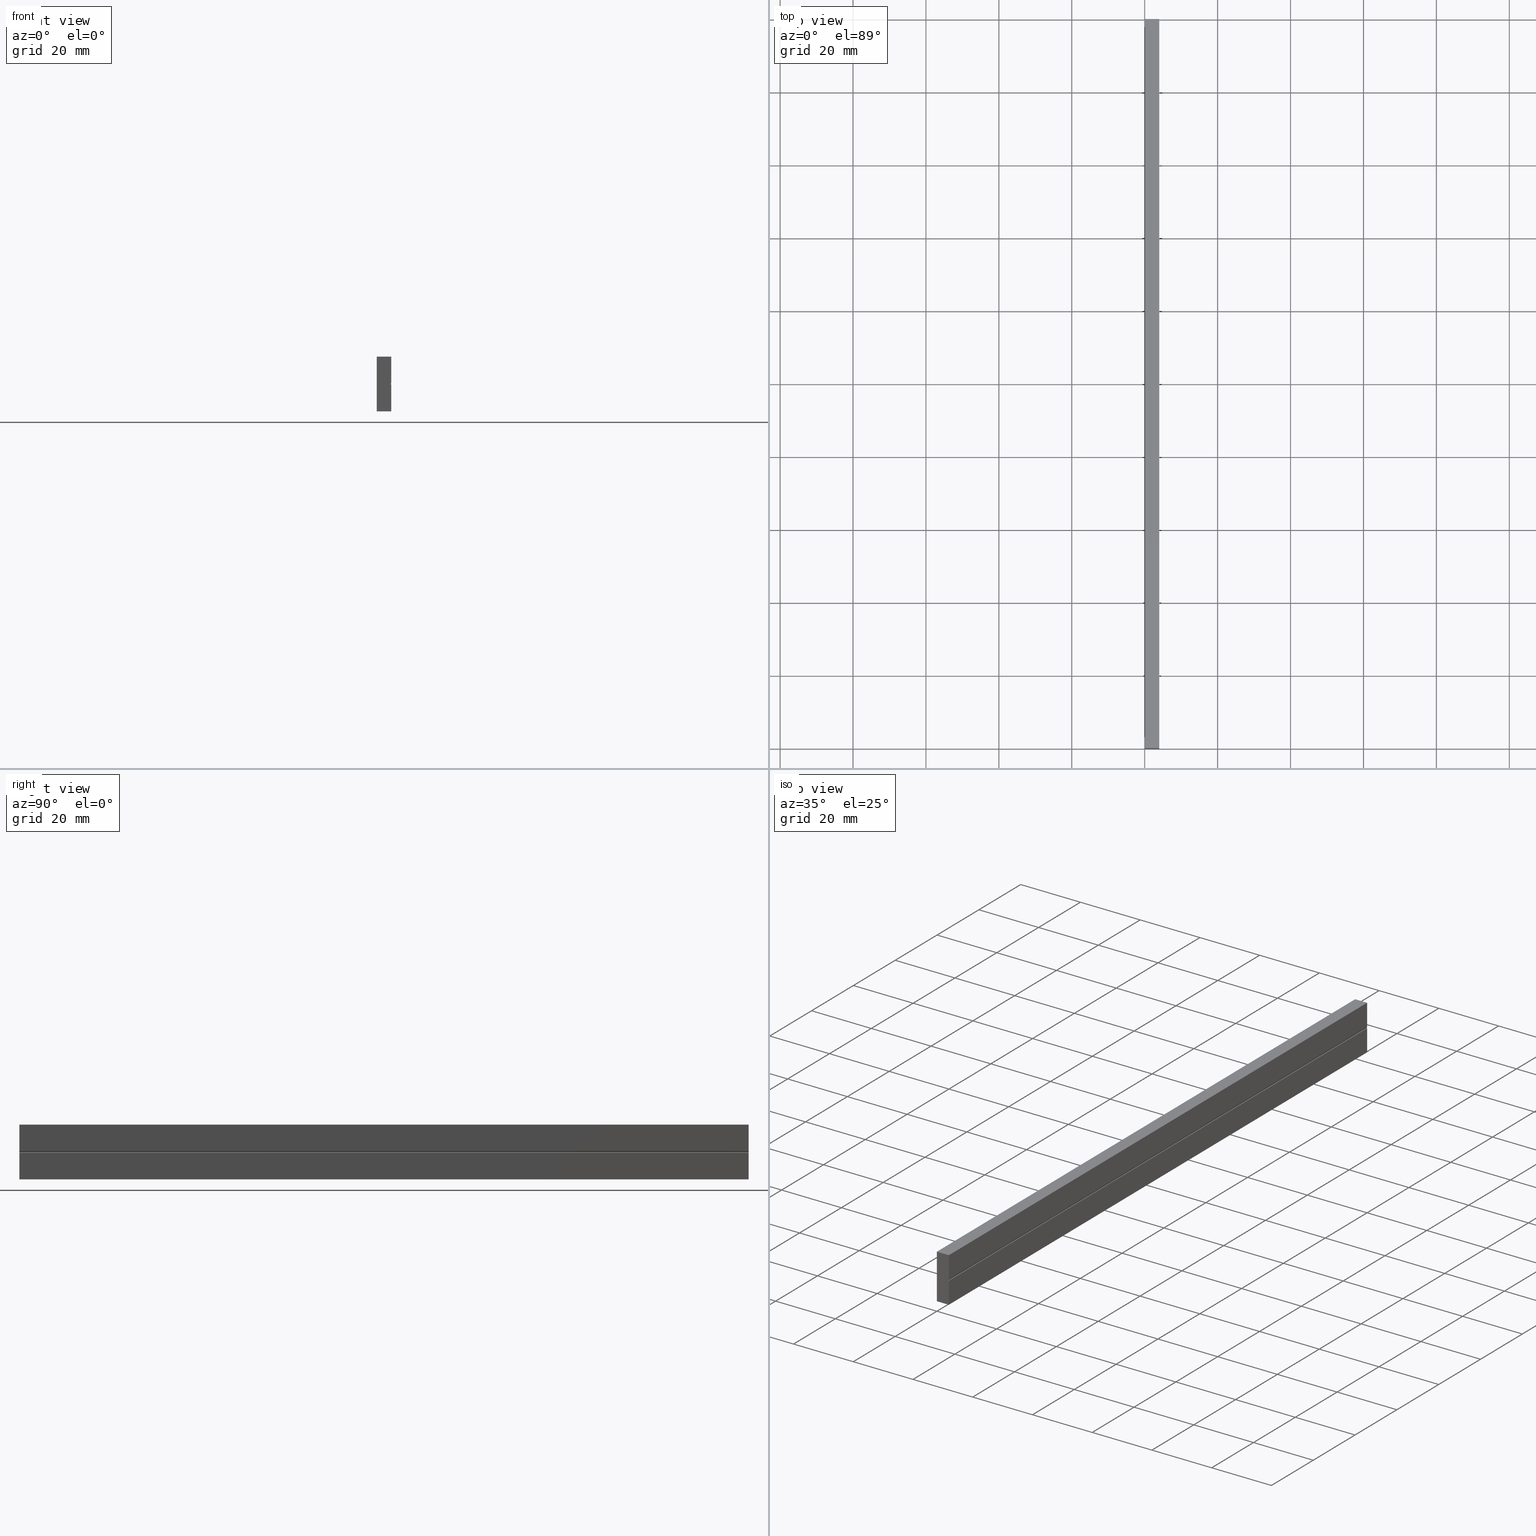
[diagram: canonical four-view strip — front | top / right | iso, engineering-drawing reading convention]
A machine part, canonical four-view strip (front | top / right | iso — engineering-drawing reading convention). The complete STEP part file that produces these views, byte-faithful:
ISO-10303-21;
HEADER;
/****************************************************************
 * Generated by software with PDE/Lib inside                    *
 * PDElib Version 4.4.1-0003, patched  Thursday August 19 11:58 *
 * International Technegroup Inc. (www.iti-oh.com)              *
 ****************************************************************/
FILE_DESCRIPTION((''),'2;1');
FILE_NAME('','2005-12-14T15:06:52',(''),(''),'','CADfix','');
FILE_SCHEMA(('AUTOMOTIVE_DESIGN'));
ENDSEC;
DATA;
#5=APPLICATION_CONTEXT('automotive design');
#6=APPLICATION_PROTOCOL_DEFINITION('Draft International Standard','automotive_design',1998,#5);
#7=PRODUCT_CONTEXT('None',#5,'mechanical');
#8=PRODUCT('magnet','','None',(#7));
#9=PRODUCT_RELATED_PRODUCT_CATEGORY('part','description',(#8));
#10=PRODUCT_DEFINITION_FORMATION('None','None',#8);
#11=PRODUCT_DEFINITION_CONTEXT('part definition',#5,'design');
#12=PRODUCT_DEFINITION('None','None',#10,#11);
#18=(NAMED_UNIT(*)PLANE_ANGLE_UNIT()SI_UNIT($,.RADIAN.));
#19=DIMENSIONAL_EXPONENTS(0.0,0.0,0.0,0.0,0.0,0.0,0.0);
#20=PLANE_ANGLE_MEASURE_WITH_UNIT(PLANE_ANGLE_MEASURE(0.017453292500000),#18);
#24=(CONVERSION_BASED_UNIT('DEGREE',#20)NAMED_UNIT(#19)PLANE_ANGLE_UNIT());
#28=(NAMED_UNIT(*)SI_UNIT($,.STERADIAN.)SOLID_ANGLE_UNIT());
#32=(LENGTH_UNIT()NAMED_UNIT(*)SI_UNIT(.MILLI.,.METRE.));
#34=UNCERTAINTY_MEASURE_WITH_UNIT(LENGTH_MEASURE(0.001000000000000),#32,'DISTANCE_ACCURACY_VALUE','');
#36=(GEOMETRIC_REPRESENTATION_CONTEXT(3)GLOBAL_UNCERTAINTY_ASSIGNED_CONTEXT((#34))GLOBAL_UNIT_ASSIGNED_CONTEXT((#24,#28,#32))REPRESENTATION_CONTEXT('None','None'));
#37=AXIS2_PLACEMENT_3D('',#38,#39,#40);
#38=CARTESIAN_POINT('',(0.0,0.0,0.0));
#39=DIRECTION('',(0.0,0.0,1.0));
#40=DIRECTION('',(1.0,0.0,0.0));
#41=ADVANCED_BREP_SHAPE_REPRESENTATION('',(#37,#266),#36);
#42=PRODUCT_DEFINITION_SHAPE('','',#12);
#43=SHAPE_DEFINITION_REPRESENTATION(#42,#41);
#44=CARTESIAN_POINT('',(-0.199799992247224,-1.776357E-015,15.749249970927091));
#45=CARTESIAN_POINT('',(4.199800099535585,-1.776357E-015,15.749249970927091));
#46=CARTESIAN_POINT('',(-0.199799992247224,-1.776357E-015,-0.749250373258442));
#47=CARTESIAN_POINT('',(4.199800099535585,-1.776357E-015,-0.749250373258442));
#48=B_SPLINE_SURFACE_WITH_KNOTS('',1,1,((#44,#46),(#45,#47)),.UNSPECIFIED.,.F.,.F.,.U.,(2,2),(2,2),(0.0,4.399600091782808),(0.0,16.498500344185530),.UNSPECIFIED.);
#49=CARTESIAN_POINT('',(0.0,0.0,15.0));
#50=VERTEX_POINT('',#49);
#51=CARTESIAN_POINT('',(0.0,0.0,0.0));
#52=VERTEX_POINT('',#51);
#53=CARTESIAN_POINT('',(0.0,0.0,15.0));
#54=CARTESIAN_POINT('',(0.0,0.0,0.0));
#55=QUASI_UNIFORM_CURVE('',1,(#53,#54),.UNSPECIFIED.,.F.,.U.);
#56=EDGE_CURVE('',#50,#52,#55,.T.);
#57=ORIENTED_EDGE('',*,*,#56,.T.);
#58=CARTESIAN_POINT('',(4.0,0.0,0.0));
#59=VERTEX_POINT('',#58);
#60=CARTESIAN_POINT('',(0.0,0.0,0.0));
#61=CARTESIAN_POINT('',(4.0,0.0,0.0));
#62=QUASI_UNIFORM_CURVE('',1,(#60,#61),.UNSPECIFIED.,.F.,.U.);
#63=EDGE_CURVE('',#52,#59,#62,.T.);
#64=ORIENTED_EDGE('',*,*,#63,.T.);
#65=CARTESIAN_POINT('',(4.0,0.0,7.249999999918490));
#66=VERTEX_POINT('',#65);
#67=CARTESIAN_POINT('',(4.0,0.0,0.0));
#68=CARTESIAN_POINT('',(4.0,0.0,7.249999999918490));
#69=QUASI_UNIFORM_CURVE('',1,(#67,#68),.UNSPECIFIED.,.F.,.U.);
#70=EDGE_CURVE('',#59,#66,#69,.T.);
#71=ORIENTED_EDGE('',*,*,#70,.T.);
#72=CARTESIAN_POINT('',(4.0,0.0,7.749999999918620));
#73=VERTEX_POINT('',#72);
#74=CARTESIAN_POINT('',(3.999999999999992,0.0,7.749999999918628));
#75=CARTESIAN_POINT('',(3.761904761904685,0.0,7.499999999918553));
#76=CARTESIAN_POINT('',(4.0,0.0,7.249999999918490));
#84=(BOUNDED_CURVE()B_SPLINE_CURVE(2,(#74,#75,#76),.UNSPECIFIED.,.F.,.U.)CURVE()GEOMETRIC_REPRESENTATION_ITEM()QUASI_UNIFORM_CURVE()RATIONAL_B_SPLINE_CURVE((1.0,0.724137931034393,1.0))REPRESENTATION_ITEM(''));
#85=EDGE_CURVE('',#73,#66,#84,.T.);
#86=ORIENTED_EDGE('',*,*,#85,.F.);
#87=CARTESIAN_POINT('',(4.0,0.0,15.0));
#88=VERTEX_POINT('',#87);
#89=CARTESIAN_POINT('',(4.0,0.0,7.749999999918620));
#90=CARTESIAN_POINT('',(4.0,0.0,15.0));
#91=QUASI_UNIFORM_CURVE('',1,(#89,#90),.UNSPECIFIED.,.F.,.U.);
#92=EDGE_CURVE('',#73,#88,#91,.T.);
#93=ORIENTED_EDGE('',*,*,#92,.T.);
#94=CARTESIAN_POINT('',(4.0,0.0,15.0));
#95=CARTESIAN_POINT('',(0.0,0.0,15.0));
#96=QUASI_UNIFORM_CURVE('',1,(#94,#95),.UNSPECIFIED.,.F.,.U.);
#97=EDGE_CURVE('',#88,#50,#96,.T.);
#98=ORIENTED_EDGE('',*,*,#97,.T.);
#99=EDGE_LOOP('',(#57,#64,#71,#86,#93,#98));
#100=FACE_OUTER_BOUND('',#99,.T.);
#101=ADVANCED_FACE('',(#100),#48,.F.);
#102=CARTESIAN_POINT('',(-0.199799992247224,200.0,15.749249970927091));
#103=CARTESIAN_POINT('',(4.199800099535585,200.0,15.749249970927091));
#104=CARTESIAN_POINT('',(-0.199799992247224,200.0,-0.749250373258442));
#105=CARTESIAN_POINT('',(4.199800099535585,200.0,-0.749250373258442));
#106=B_SPLINE_SURFACE_WITH_KNOTS('',1,1,((#102,#104),(#103,#105)),.UNSPECIFIED.,.F.,.F.,.U.,(2,2),(2,2),(0.0,4.399600091782808),(0.0,16.498500344185530),.UNSPECIFIED.);
#107=CARTESIAN_POINT('',(0.0,200.0,15.0));
#108=VERTEX_POINT('',#107);
#109=CARTESIAN_POINT('',(0.0,200.0,0.0));
#110=VERTEX_POINT('',#109);
#111=CARTESIAN_POINT('',(0.0,200.0,15.0));
#112=CARTESIAN_POINT('',(0.0,200.0,0.0));
#113=QUASI_UNIFORM_CURVE('',1,(#111,#112),.UNSPECIFIED.,.F.,.U.);
#114=EDGE_CURVE('',#108,#110,#113,.T.);
#115=ORIENTED_EDGE('',*,*,#114,.F.);
#116=CARTESIAN_POINT('',(4.0,200.0,15.0));
#117=VERTEX_POINT('',#116);
#118=CARTESIAN_POINT('',(4.0,200.0,15.0));
#119=CARTESIAN_POINT('',(0.0,200.0,15.0));
#120=QUASI_UNIFORM_CURVE('',1,(#118,#119),.UNSPECIFIED.,.F.,.U.);
#121=EDGE_CURVE('',#117,#108,#120,.T.);
#122=ORIENTED_EDGE('',*,*,#121,.F.);
#123=CARTESIAN_POINT('',(4.0,200.0,7.749999999918620));
#124=VERTEX_POINT('',#123);
#125=CARTESIAN_POINT('',(4.0,200.0,7.749999999918620));
#126=CARTESIAN_POINT('',(4.0,200.0,15.0));
#127=QUASI_UNIFORM_CURVE('',1,(#125,#126),.UNSPECIFIED.,.F.,.U.);
#128=EDGE_CURVE('',#124,#117,#127,.T.);
#129=ORIENTED_EDGE('',*,*,#128,.F.);
#130=CARTESIAN_POINT('',(4.0,200.0,7.249999999918490));
#131=VERTEX_POINT('',#130);
#132=CARTESIAN_POINT('',(3.999999999999992,200.0,7.749999999918628));
#133=CARTESIAN_POINT('',(3.761904761904685,200.0,7.499999999918553));
#134=CARTESIAN_POINT('',(4.000000000000057,200.0,7.249999999918543));
#142=(BOUNDED_CURVE()B_SPLINE_CURVE(2,(#132,#133,#134),.UNSPECIFIED.,.F.,.U.)CURVE()GEOMETRIC_REPRESENTATION_ITEM()QUASI_UNIFORM_CURVE()RATIONAL_B_SPLINE_CURVE((1.0,0.724137931034393,1.0))REPRESENTATION_ITEM(''));
#143=EDGE_CURVE('',#124,#131,#142,.T.);
#144=ORIENTED_EDGE('',*,*,#143,.T.);
#145=CARTESIAN_POINT('',(4.0,200.0,0.0));
#146=VERTEX_POINT('',#145);
#147=CARTESIAN_POINT('',(4.0,200.0,0.0));
#148=CARTESIAN_POINT('',(4.0,200.0,7.249999999918490));
#149=QUASI_UNIFORM_CURVE('',1,(#147,#148),.UNSPECIFIED.,.F.,.U.);
#150=EDGE_CURVE('',#146,#131,#149,.T.);
#151=ORIENTED_EDGE('',*,*,#150,.F.);
#152=CARTESIAN_POINT('',(0.0,200.0,0.0));
#153=CARTESIAN_POINT('',(4.0,200.0,0.0));
#154=QUASI_UNIFORM_CURVE('',1,(#152,#153),.UNSPECIFIED.,.F.,.U.);
#155=EDGE_CURVE('',#110,#146,#154,.T.);
#156=ORIENTED_EDGE('',*,*,#155,.F.);
#157=EDGE_LOOP('',(#115,#122,#129,#144,#151,#156));
#158=FACE_OUTER_BOUND('',#157,.T.);
#159=ADVANCED_FACE('',(#158),#106,.T.);
#160=CARTESIAN_POINT('',(-0.199799992247224,-9.989999612361171,15.0));
#161=CARTESIAN_POINT('',(4.199800099535585,-9.989999612361171,15.0));
#162=CARTESIAN_POINT('',(-0.199799992247224,209.990004976779200,15.0));
#163=CARTESIAN_POINT('',(4.199800099535585,209.990004976779200,15.0));
#164=B_SPLINE_SURFACE_WITH_KNOTS('',1,1,((#160,#162),(#161,#163)),.UNSPECIFIED.,.F.,.F.,.U.,(2,2),(2,2),(0.0,4.399600091782808),(0.0,219.980004589140410),.UNSPECIFIED.);
#165=ORIENTED_EDGE('',*,*,#97,.F.);
#166=CARTESIAN_POINT('',(4.0,200.0,15.0));
#167=CARTESIAN_POINT('',(4.0,0.0,15.0));
#168=QUASI_UNIFORM_CURVE('',1,(#166,#167),.UNSPECIFIED.,.F.,.U.);
#169=EDGE_CURVE('',#117,#88,#168,.T.);
#170=ORIENTED_EDGE('',*,*,#169,.F.);
#171=ORIENTED_EDGE('',*,*,#121,.T.);
#172=CARTESIAN_POINT('',(0.0,200.0,15.0));
#173=CARTESIAN_POINT('',(0.0,0.0,15.0));
#174=QUASI_UNIFORM_CURVE('',1,(#172,#173),.UNSPECIFIED.,.F.,.U.);
#175=EDGE_CURVE('',#108,#50,#174,.T.);
#176=ORIENTED_EDGE('',*,*,#175,.T.);
#177=EDGE_LOOP('',(#165,#170,#171,#176));
#178=FACE_OUTER_BOUND('',#177,.T.);
#179=ADVANCED_FACE('',(#178),#164,.T.);
#180=CARTESIAN_POINT('',(4.0,-9.989999612361171,15.362137485952161));
#181=CARTESIAN_POINT('',(4.0,-9.989999612361171,7.387862319506308));
#182=CARTESIAN_POINT('',(4.0,209.990004976779200,15.362137485952161));
#183=CARTESIAN_POINT('',(4.0,209.990004976779200,7.387862319506308));
#184=B_SPLINE_SURFACE_WITH_KNOTS('',1,1,((#180,#182),(#181,#183)),.UNSPECIFIED.,.F.,.F.,.U.,(2,2),(2,2),(0.0,7.974275166445849),(0.0,219.980004589140410),.UNSPECIFIED.);
#185=ORIENTED_EDGE('',*,*,#92,.F.);
#186=CARTESIAN_POINT('',(4.0,200.0,7.749999999918620));
#187=CARTESIAN_POINT('',(4.0,0.0,7.749999999918620));
#188=QUASI_UNIFORM_CURVE('',1,(#186,#187),.UNSPECIFIED.,.F.,.U.);
#189=EDGE_CURVE('',#124,#73,#188,.T.);
#190=ORIENTED_EDGE('',*,*,#189,.F.);
#191=ORIENTED_EDGE('',*,*,#128,.T.);
#192=ORIENTED_EDGE('',*,*,#169,.T.);
#193=EDGE_LOOP('',(#185,#190,#191,#192));
#194=FACE_OUTER_BOUND('',#193,.T.);
#195=ADVANCED_FACE('',(#194),#184,.T.);
#196=CARTESIAN_POINT('',(4.002191629070306,205.0,7.247718803584179));
#197=CARTESIAN_POINT('',(4.002191629070306,-5.125000000000000,7.247718803584179));
#198=CARTESIAN_POINT('',(3.745468418572526,204.999999999999970,7.512610526294766));
#199=CARTESIAN_POINT('',(3.745468418572526,-5.125000000000000,7.512610526294766));
#200=CARTESIAN_POINT('',(4.014800234802203,205.0,7.764671638597502));
#201=CARTESIAN_POINT('',(4.014800234802203,-5.125000000000000,7.764671638597502));
#209=(BOUNDED_SURFACE()B_SPLINE_SURFACE(1,2,((#196,#198,#200),(#197,#199,#201)),.UNSPECIFIED.,.F.,.F.,.U.)B_SPLINE_SURFACE_WITH_KNOTS((2,2),(3,3),(0.0,210.125000000000000),(0.0,1.0),.UNSPECIFIED.)GEOMETRIC_REPRESENTATION_ITEM()RATIONAL_B_SPLINE_SURFACE(((1.0,0.700909264299851,1.0),(1.0,0.700909264299851,1.0)))REPRESENTATION_ITEM('')SURFACE());
#210=ORIENTED_EDGE('',*,*,#85,.T.);
#211=CARTESIAN_POINT('',(4.0,200.0,7.249999999918490));
#212=CARTESIAN_POINT('',(4.0,0.0,7.249999999918490));
#213=QUASI_UNIFORM_CURVE('',1,(#211,#212),.UNSPECIFIED.,.F.,.U.);
#214=EDGE_CURVE('',#131,#66,#213,.T.);
#215=ORIENTED_EDGE('',*,*,#214,.F.);
#216=ORIENTED_EDGE('',*,*,#143,.F.);
#217=ORIENTED_EDGE('',*,*,#189,.T.);
#218=EDGE_LOOP('',(#210,#215,#216,#217));
#219=FACE_OUTER_BOUND('',#218,.T.);
#220=ADVANCED_FACE('',(#219),#209,.F.);
#221=CARTESIAN_POINT('',(4.0,-9.989999612361194,7.612137485862512));
#222=CARTESIAN_POINT('',(4.0,-9.989999612361194,-0.362137680404175));
#223=CARTESIAN_POINT('',(4.0,209.990004976779200,7.612137485862512));
#224=CARTESIAN_POINT('',(4.0,209.990004976779200,-0.362137680404175));
#225=B_SPLINE_SURFACE_WITH_KNOTS('',1,1,((#221,#223),(#222,#224)),.UNSPECIFIED.,.F.,.F.,.U.,(2,2),(2,2),(0.0,7.974275166266687),(0.0,219.980004589140410),.UNSPECIFIED.);
#226=ORIENTED_EDGE('',*,*,#70,.F.);
#227=CARTESIAN_POINT('',(4.0,200.0,0.0));
#228=CARTESIAN_POINT('',(4.0,0.0,0.0));
#229=QUASI_UNIFORM_CURVE('',1,(#227,#228),.UNSPECIFIED.,.F.,.U.);
#230=EDGE_CURVE('',#146,#59,#229,.T.);
#231=ORIENTED_EDGE('',*,*,#230,.F.);
#232=ORIENTED_EDGE('',*,*,#150,.T.);
#233=ORIENTED_EDGE('',*,*,#214,.T.);
#234=EDGE_LOOP('',(#226,#231,#232,#233));
#235=FACE_OUTER_BOUND('',#234,.T.);
#236=ADVANCED_FACE('',(#235),#225,.T.);
#237=CARTESIAN_POINT('',(4.199799992247224,-9.989999612361194,0.0));
#238=CARTESIAN_POINT('',(-0.199800099535584,-9.989999612361194,0.0));
#239=CARTESIAN_POINT('',(4.199799992247224,209.990004976779200,0.0));
#240=CARTESIAN_POINT('',(-0.199800099535584,209.990004976779200,0.0));
#241=B_SPLINE_SURFACE_WITH_KNOTS('',1,1,((#237,#239),(#238,#240)),.UNSPECIFIED.,.F.,.F.,.U.,(2,2),(2,2),(0.0,4.399600091782808),(0.0,219.980004589140410),.UNSPECIFIED.);
#242=ORIENTED_EDGE('',*,*,#63,.F.);
#243=CARTESIAN_POINT('',(0.0,200.0,0.0));
#244=CARTESIAN_POINT('',(0.0,0.0,0.0));
#245=QUASI_UNIFORM_CURVE('',1,(#243,#244),.UNSPECIFIED.,.F.,.U.);
#246=EDGE_CURVE('',#110,#52,#245,.T.);
#247=ORIENTED_EDGE('',*,*,#246,.F.);
#248=ORIENTED_EDGE('',*,*,#155,.T.);
#249=ORIENTED_EDGE('',*,*,#230,.T.);
#250=EDGE_LOOP('',(#242,#247,#248,#249));
#251=FACE_OUTER_BOUND('',#250,.T.);
#252=ADVANCED_FACE('',(#251),#241,.T.);
#253=CARTESIAN_POINT('',(0.0,-9.989999612361171,-0.749249970927090));
#254=CARTESIAN_POINT('',(0.0,-9.989999612361171,15.749250373258439));
#255=CARTESIAN_POINT('',(0.0,209.990004976779200,-0.749249970927090));
#256=CARTESIAN_POINT('',(0.0,209.990004976779200,15.749250373258439));
#257=B_SPLINE_SURFACE_WITH_KNOTS('',1,1,((#253,#255),(#254,#256)),.UNSPECIFIED.,.F.,.F.,.U.,(2,2),(2,2),(0.0,16.498500344185530),(0.0,219.980004589140410),.UNSPECIFIED.);
#258=ORIENTED_EDGE('',*,*,#56,.F.);
#259=ORIENTED_EDGE('',*,*,#175,.F.);
#260=ORIENTED_EDGE('',*,*,#114,.T.);
#261=ORIENTED_EDGE('',*,*,#246,.T.);
#262=EDGE_LOOP('',(#258,#259,#260,#261));
#263=FACE_OUTER_BOUND('',#262,.T.);
#264=ADVANCED_FACE('',(#263),#257,.T.);
#265=CLOSED_SHELL('',(#101,#159,#179,#195,#220,#236,#252,#264));
#266=MANIFOLD_SOLID_BREP('magnet',#265);
#272=(NAMED_UNIT(*)PLANE_ANGLE_UNIT()SI_UNIT($,.RADIAN.));
#273=DIMENSIONAL_EXPONENTS(0.0,0.0,0.0,0.0,0.0,0.0,0.0);
#274=PLANE_ANGLE_MEASURE_WITH_UNIT(PLANE_ANGLE_MEASURE(0.017453292500000),#272);
#278=(CONVERSION_BASED_UNIT('DEGREE',#274)NAMED_UNIT(#273)PLANE_ANGLE_UNIT());
#282=(NAMED_UNIT(*)SI_UNIT($,.STERADIAN.)SOLID_ANGLE_UNIT());
#286=(LENGTH_UNIT()NAMED_UNIT(*)SI_UNIT(.MILLI.,.METRE.));
#288=UNCERTAINTY_MEASURE_WITH_UNIT(LENGTH_MEASURE(0.001000000000000),#286,'DISTANCE_ACCURACY_VALUE','');
#290=(GEOMETRIC_REPRESENTATION_CONTEXT(3)GLOBAL_UNCERTAINTY_ASSIGNED_CONTEXT((#288))GLOBAL_UNIT_ASSIGNED_CONTEXT((#278,#282,#286))REPRESENTATION_CONTEXT('','3D'));
ENDSEC;
END-ISO-10303-21;
